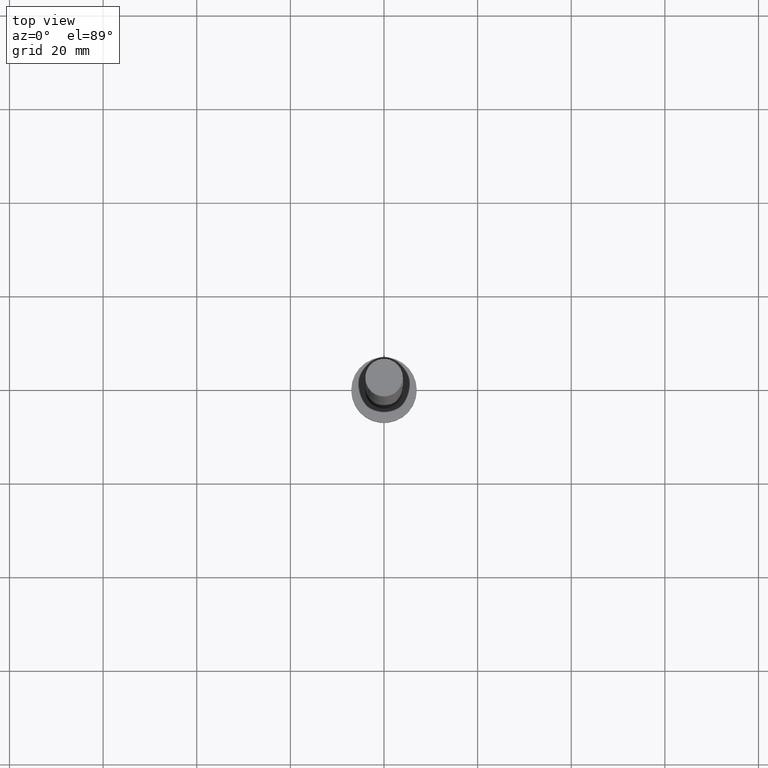
[diagram: clean part render]
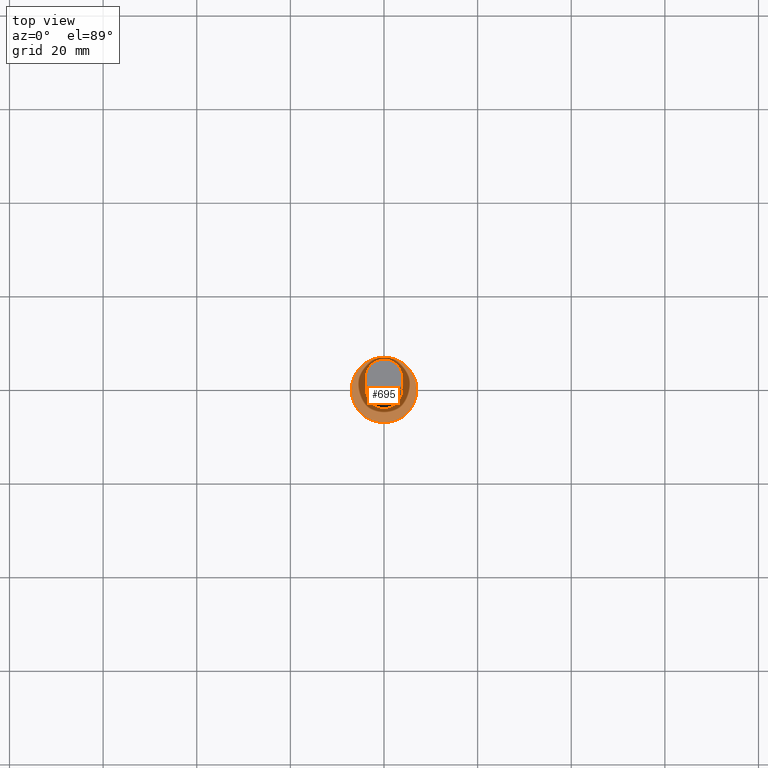
[diagram: same view with one face highlighted and labeled with its STEP entity id]
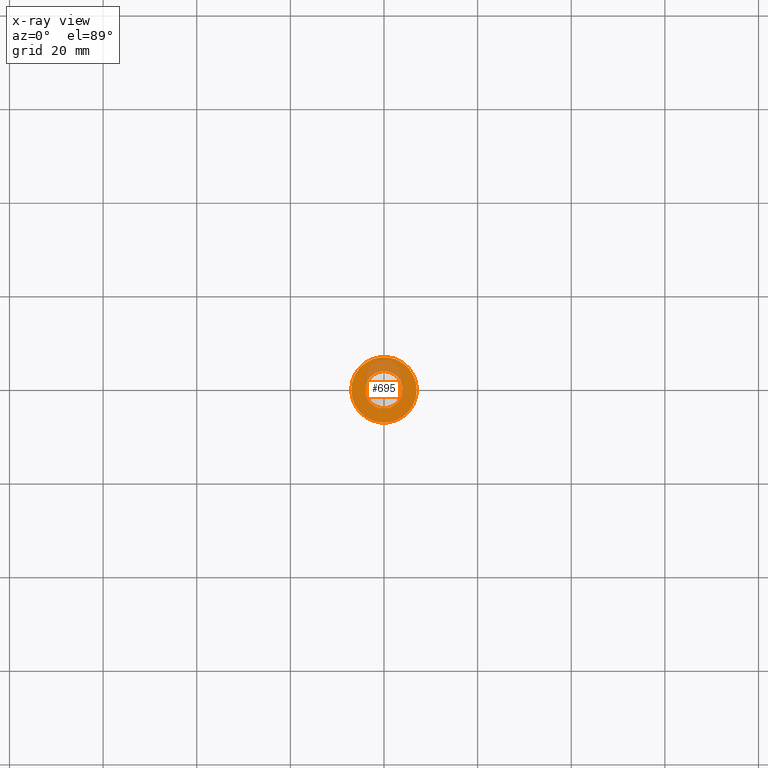
[diagram: x-ray of the same camera — body ghosted, the highlighted face saturated]
A machine part, top view. The second image highlights one B-rep face of the part: STEP entity #695.
The next image is the same camera in x-ray: the body ghosted, the highlighted face saturated — about 20% of this face is hidden behind the body in this view.
In plain terms, the highlighted planar face has unit normal (0, 0, 1).
Its self-contained STEP definition (entity closure, byte-faithful):
#98 = DIRECTION ( 'NONE',  ( 1.000000000000000000, 0.000000000000000000, -0.000000000000000000 ) ) ;
#156 = DIRECTION ( 'NONE',  ( 0.000000000000000000, 0.000000000000000000, 1.000000000000000000 ) ) ;
#235 = ORIENTED_EDGE ( 'NONE', *, *, #1626, .F. ) ;
#296 = AXIS2_PLACEMENT_3D ( 'NONE', #1489, #1475, #1603 ) ;
#342 = EDGE_LOOP ( 'NONE', ( #235, #962 ) ) ;
#344 = FACE_BOUND ( 'NONE', #342, .T. ) ;
#366 = CARTESIAN_POINT ( 'NONE',  ( 0.000000000000000000, 0.000000000000000000, 5.000000000000000000 ) ) ;
#395 = EDGE_CURVE ( 'NONE', #591, #401, #1281, .T. ) ;
#401 = VERTEX_POINT ( 'NONE', #1448 ) ;
#436 = VERTEX_POINT ( 'NONE', #441 ) ;
#441 = CARTESIAN_POINT ( 'NONE',  ( -7.000000000000000000, 0.000000000000000000, 5.000000000000000000 ) ) ;
#471 = PLANE ( 'NONE',  #1575 ) ;
#591 = VERTEX_POINT ( 'NONE', #1373 ) ;
#610 = CARTESIAN_POINT ( 'NONE',  ( 7.000000000000000000, 8.572527594031473190E-16, 5.000000000000000000 ) ) ;
#632 = FACE_OUTER_BOUND ( 'NONE', #731, .T. ) ;
#641 = AXIS2_PLACEMENT_3D ( 'NONE', #790, #156, #1078 ) ;
#695 = ADVANCED_FACE ( 'NONE', ( #344, #632 ), #471, .T. ) ;
#697 = CARTESIAN_POINT ( 'NONE',  ( 0.000000000000000000, 0.000000000000000000, 5.000000000000000000 ) ) ;
#726 = AXIS2_PLACEMENT_3D ( 'NONE', #697, #1084, #1348 ) ;
#731 = EDGE_LOOP ( 'NONE', ( #844, #1012 ) ) ;
#759 = CIRCLE ( 'NONE', #296, 7.000000000000000000 ) ;
#790 = CARTESIAN_POINT ( 'NONE',  ( 0.000000000000000000, 0.000000000000000000, 5.000000000000000000 ) ) ;
#844 = ORIENTED_EDGE ( 'NONE', *, *, #1075, .T. ) ;
#951 = AXIS2_PLACEMENT_3D ( 'NONE', #366, #1499, #1123 ) ;
#962 = ORIENTED_EDGE ( 'NONE', *, *, #395, .F. ) ;
#1012 = ORIENTED_EDGE ( 'NONE', *, *, #1370, .T. ) ;
#1075 = EDGE_CURVE ( 'NONE', #436, #1506, #1523, .T. ) ;
#1078 = DIRECTION ( 'NONE',  ( 1.000000000000000000, 0.000000000000000000, 0.000000000000000000 ) ) ;
#1084 = DIRECTION ( 'NONE',  ( 0.000000000000000000, 0.000000000000000000, 1.000000000000000000 ) ) ;
#1123 = DIRECTION ( 'NONE',  ( 1.000000000000000000, 0.000000000000000000, 0.000000000000000000 ) ) ;
#1281 = CIRCLE ( 'NONE', #641, 4.000000000000000000 ) ;
#1348 = DIRECTION ( 'NONE',  ( 1.000000000000000000, 0.000000000000000000, 0.000000000000000000 ) ) ;
#1365 = DIRECTION ( 'NONE',  ( 0.000000000000000000, 0.000000000000000000, 1.000000000000000000 ) ) ;
#1370 = EDGE_CURVE ( 'NONE', #1506, #436, #759, .T. ) ;
#1373 = CARTESIAN_POINT ( 'NONE',  ( 4.000000000000000000, 4.898587196589412829E-16, 5.000000000000000000 ) ) ;
#1383 = CARTESIAN_POINT ( 'NONE',  ( 0.000000000000000000, 0.000000000000000000, 5.000000000000000000 ) ) ;
#1448 = CARTESIAN_POINT ( 'NONE',  ( -4.000000000000000000, 0.000000000000000000, 5.000000000000000000 ) ) ;
#1450 = CIRCLE ( 'NONE', #951, 4.000000000000000000 ) ;
#1475 = DIRECTION ( 'NONE',  ( 0.000000000000000000, 0.000000000000000000, 1.000000000000000000 ) ) ;
#1489 = CARTESIAN_POINT ( 'NONE',  ( 0.000000000000000000, 0.000000000000000000, 5.000000000000000000 ) ) ;
#1499 = DIRECTION ( 'NONE',  ( 0.000000000000000000, 0.000000000000000000, 1.000000000000000000 ) ) ;
#1506 = VERTEX_POINT ( 'NONE', #610 ) ;
#1523 = CIRCLE ( 'NONE', #726, 7.000000000000000000 ) ;
#1575 = AXIS2_PLACEMENT_3D ( 'NONE', #1383, #1365, #98 ) ;
#1603 = DIRECTION ( 'NONE',  ( 1.000000000000000000, 0.000000000000000000, 0.000000000000000000 ) ) ;
#1626 = EDGE_CURVE ( 'NONE', #401, #591, #1450, .T. ) ;